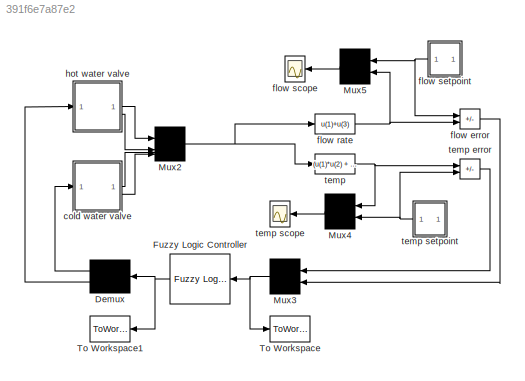
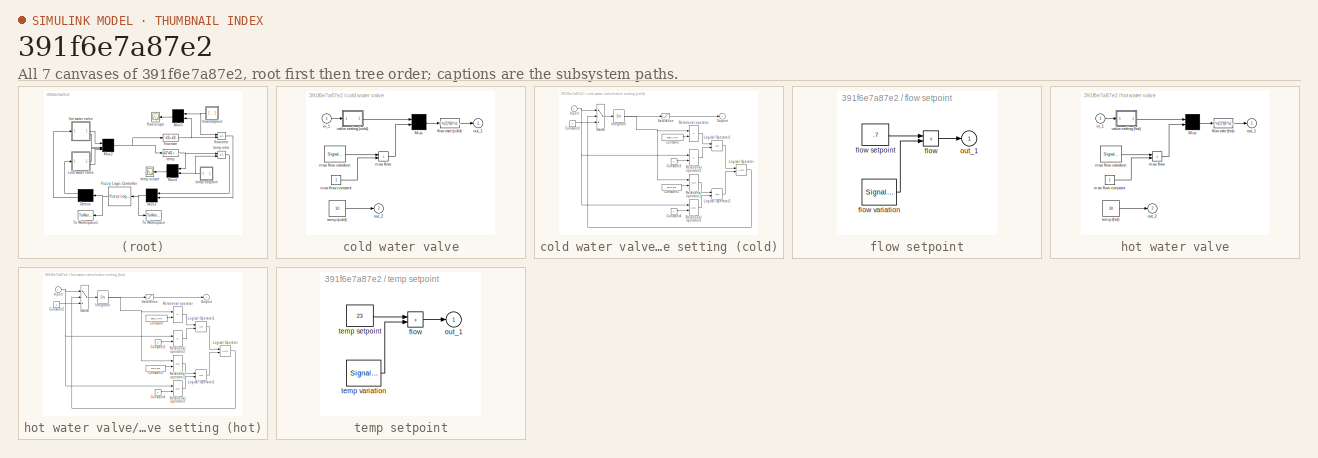
[diagram: thumbnail index - all 7 canvases of the model, root first then tree order]
MODEL slx_391f6e7a87e2
KIND model
CONFIG AbsTol = 1e-3
CONFIG EnableMultiTasking = off
CONFIG FixedStep = auto
CONFIG MaxStep = 0.1
CONFIG MinStep = auto
CONFIG PreLoadFcn = fis = readfis('shower');\nk=1;
CONFIG RelTol = 1e-3
CONFIG SampleTimeConstraint = Unconstrained
CONFIG SolverName = ode45
CONFIG StartTime = 0
CONFIG StopTime = 50
BLOCK [Demux] Demux
  DisplayOption = none
  Outputs = 2
BLOCK [Reference] Fuzzy Logic Controller  REF=fuzblock/Fuzzy Logic   (lib defined in mdl_858b3b3e7478)
Controller
  SourceBlock = fuzblock/Fuzzy Logic \nController
  SourceType = Fuzzy Inference System
BLOCK [Mux] Mux2
BLOCK [Mux] Mux3
  Inputs = 2
BLOCK [Mux] Mux4
  Inputs = 2
BLOCK [Mux] Mux5
  Inputs = 2
BLOCK [ToWorkspace] To Workspace
  VariableName = in
BLOCK [ToWorkspace] To Workspace1
  VariableName = out
BLOCK [SubSystem] cold water valve
  ShowPortLabels = none
BLOCK [Mux] cold water valve/Mux
  Inputs = 2
BLOCK [Fcn] cold water valve/flow rate (cold)
  Expr = k*u(1)*((k*u(1))<=u(2)) + u(2)*((k*u(1))>u(2))
BLOCK [Inport] cold water valve/in_1
BLOCK [Sum] cold water valve/max flow
  IconShape = rectangular
  InputSameDT = on
  OutDataTypeStr = Inherit: Same as first input
  SaturateOnIntegerOverflow = on
BLOCK [Constant] cold water valve/max flow constant
BLOCK [SignalGenerator] cold water valve/max flow variation
  Amplitude = 0.000000
  Frequency = 0.101325
  Units = rad/sec
BLOCK [Outport] cold water valve/out_1
  InitialOutput = 0
  VectorParamsAs1DForOutWhenUnconnected = off
BLOCK [Outport] cold water valve/out_2
  InitialOutput = 0
  Port = 2
  VectorParamsAs1DForOutWhenUnconnected = off
BLOCK [Constant] cold water valve/temp (cold)
  Value = 10
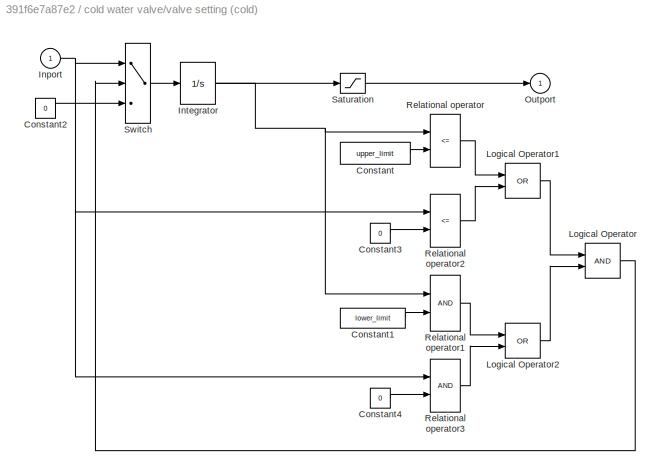
BLOCK [SubSystem] cold water valve/valve setting (cold)
  ShowPortLabels = none
BLOCK [Constant] cold water valve/valve setting (cold)/Constant
  Value = upper_limit
BLOCK [Constant] cold water valve/valve setting (cold)/Constant1
  Value = lower_limit
BLOCK [Constant] cold water valve/valve setting (cold)/Constant2
  Value = 0
BLOCK [Constant] cold water valve/valve setting (cold)/Constant3
  Value = 0
BLOCK [Constant] cold water valve/valve setting (cold)/Constant4
  Value = 0
BLOCK [Inport] cold water valve/valve setting (cold)/Inport
BLOCK [Integrator] cold water valve/valve setting (cold)/Integrator
  InitialCondition = X0
BLOCK [Logic] cold water valve/valve setting (cold)/Logical Operator
BLOCK [Logic] cold water valve/valve setting (cold)/Logical Operator1
  Operator = OR
BLOCK [Logic] cold water valve/valve setting (cold)/Logical Operator2
  Operator = OR
BLOCK [Outport] cold water valve/valve setting (cold)/Outport
  InitialOutput = 0
  VectorParamsAs1DForOutWhenUnconnected = off
BLOCK [RelationalOperator] cold water valve/valve setting (cold)/Relational operator
  Operator = <=
BLOCK [RelationalOperator] cold water valve/valve setting (cold)/Relational operator1
BLOCK [RelationalOperator] cold water valve/valve setting (cold)/Relational operator2
  Operator = <=
BLOCK [RelationalOperator] cold water valve/valve setting (cold)/Relational operator3
BLOCK [Saturate] cold water valve/valve setting (cold)/Saturation
  LowerLimit = lower_limit
  UpperLimit = upper_limit
BLOCK [Switch] cold water valve/valve setting (cold)/Switch
  Threshold = 0.5
BLOCK [Sum] flow error
  IconShape = rectangular
  InputSameDT = on
  Inputs = -+
  OutDataTypeStr = Inherit: Same as first input
  SaturateOnIntegerOverflow = on
BLOCK [Fcn] flow rate
  Expr = u(1)+u(3)
BLOCK [Scope] flow scope
  Floating = off
  NumInputPorts = 1
  ScopeSpecificationString = Simulink.scopes.TimeScopeBlockCfg('CurrentConfiguration', extmgr.ConfigurationSet(extmgr.Configuration('Core','General UI',true),extmgr.Configuration('Core','Source UI',true),extmgr.Configuration('Sources','WiredSimulink',true,'DataLoggingSaveFormat','Array','DataLoggingLimitDataPoints',true,'DataLoggingDecimation','1','DataLoggingDecimateData',true),extmgr.Configuration('Visuals','Time Domain',tr...<+1792ch>
BLOCK [SubSystem] flow setpoint
  ShowPortLabels = none
BLOCK [Sum] flow setpoint/flow
  IconShape = rectangular
  InputSameDT = on
  OutDataTypeStr = Inherit: Same as first input
  SaturateOnIntegerOverflow = on
BLOCK [Constant] flow setpoint/flow setpoint
  Value = .7
BLOCK [SignalGenerator] flow setpoint/flow variation
  Amplitude = 0.200000
  Frequency = 0.300000
  Units = rad/sec
  WaveForm = square
BLOCK [Outport] flow setpoint/out_1
  InitialOutput = 0
  VectorParamsAs1DForOutWhenUnconnected = off
BLOCK [SubSystem] hot water valve
  ShowPortLabels = none
BLOCK [Mux] hot water valve/Mux
  Inputs = 2
BLOCK [Fcn] hot water valve/flow rate (hot)
  Expr = k*u(1)*((k*u(1))<=u(2)) + u(2)*((k*u(1))>u(2))
BLOCK [Inport] hot water valve/in_1
BLOCK [Sum] hot water valve/max flow
  IconShape = rectangular
  InputSameDT = on
  OutDataTypeStr = Inherit: Same as first input
  SaturateOnIntegerOverflow = on
BLOCK [Constant] hot water valve/max flow constant
BLOCK [SignalGenerator] hot water valve/max flow variation
  Amplitude = 0.000000
  Frequency = 0.300000
  Units = rad/sec
BLOCK [Outport] hot water valve/out_1
  InitialOutput = 0
  VectorParamsAs1DForOutWhenUnconnected = off
BLOCK [Outport] hot water valve/out_2
  InitialOutput = 0
  Port = 2
  VectorParamsAs1DForOutWhenUnconnected = off
BLOCK [Constant] hot water valve/temp (hot)
  Value = 30
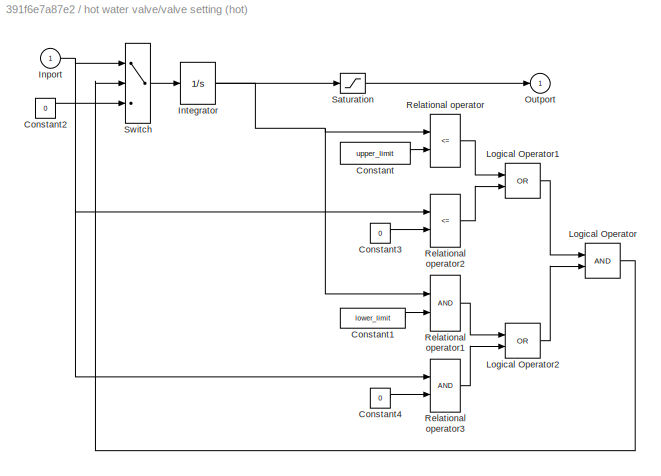
BLOCK [SubSystem] hot water valve/valve setting (hot)
  ShowPortLabels = none
BLOCK [Constant] hot water valve/valve setting (hot)/Constant
  Value = upper_limit
BLOCK [Constant] hot water valve/valve setting (hot)/Constant1
  Value = lower_limit
BLOCK [Constant] hot water valve/valve setting (hot)/Constant2
  Value = 0
BLOCK [Constant] hot water valve/valve setting (hot)/Constant3
  Value = 0
BLOCK [Constant] hot water valve/valve setting (hot)/Constant4
  Value = 0
BLOCK [Inport] hot water valve/valve setting (hot)/Inport
BLOCK [Integrator] hot water valve/valve setting (hot)/Integrator
  InitialCondition = X0
BLOCK [Logic] hot water valve/valve setting (hot)/Logical Operator
BLOCK [Logic] hot water valve/valve setting (hot)/Logical Operator1
  Operator = OR
BLOCK [Logic] hot water valve/valve setting (hot)/Logical Operator2
  Operator = OR
BLOCK [Outport] hot water valve/valve setting (hot)/Outport
  InitialOutput = 0
  VectorParamsAs1DForOutWhenUnconnected = off
BLOCK [RelationalOperator] hot water valve/valve setting (hot)/Relational operator
  Operator = <=
BLOCK [RelationalOperator] hot water valve/valve setting (hot)/Relational operator1
BLOCK [RelationalOperator] hot water valve/valve setting (hot)/Relational operator2
  Operator = <=
BLOCK [RelationalOperator] hot water valve/valve setting (hot)/Relational operator3
BLOCK [Saturate] hot water valve/valve setting (hot)/Saturation
  LowerLimit = lower_limit
  UpperLimit = upper_limit
BLOCK [Switch] hot water valve/valve setting (hot)/Switch
  Threshold = 0.5
BLOCK [Fcn] temp
  Expr = (u(1)*u(2) + u(3)*u(4))/(u(1)+u(3))
BLOCK [Sum] temp error
  IconShape = rectangular
  InputSameDT = on
  Inputs = +-
  OutDataTypeStr = Inherit: Same as first input
  SaturateOnIntegerOverflow = on
BLOCK [Scope] temp scope
  Floating = off
  NumInputPorts = 1
  ScopeSpecificationString = Simulink.scopes.TimeScopeBlockCfg('CurrentConfiguration', extmgr.ConfigurationSet(extmgr.Configuration('Core','General UI',true),extmgr.Configuration('Core','Source UI',true),extmgr.Configuration('Sources','WiredSimulink',true,'DataLoggingSaveFormat','Array','DataLoggingLimitDataPoints',true,'DataLoggingDecimation','1','DataLoggingDecimateData',true),extmgr.Configuration('Visuals','Time Domain',tr...<+1792ch>
BLOCK [SubSystem] temp setpoint
  ShowPortLabels = none
BLOCK [Sum] temp setpoint/flow
  IconShape = rectangular
  InputSameDT = on
  OutDataTypeStr = Inherit: Same as first input
  SaturateOnIntegerOverflow = on
BLOCK [Outport] temp setpoint/out_1
  InitialOutput = 0
  VectorParamsAs1DForOutWhenUnconnected = off
BLOCK [Constant] temp setpoint/temp setpoint
  Value = 23
BLOCK [SignalGenerator] temp setpoint/temp variation
  Amplitude = 4.000000
  Frequency = 0.214320
  Units = rad/sec
  WaveForm = square
LINE Demux:1 -> cold water valve:1
LINE Demux:2 -> hot water valve:1
NET Fuzzy Logic Controller:1 -> Demux:1, To Workspace1:1
NET Mux2:1 -> flow rate:1, temp:1
NET Mux3:1 -> Fuzzy Logic Controller:1, To Workspace:1
LINE Mux4:1 -> temp scope:1
LINE Mux5:1 -> flow scope:1
LINE cold water valve/Mux:1 -> cold water valve/flow rate (cold):1
LINE cold water valve/flow rate (cold):1 -> cold water valve/out_1:1
LINE cold water valve/in_1:1 -> cold water valve/valve setting (cold):1
LINE cold water valve/max flow constant:1 -> cold water valve/max flow:2
LINE cold water valve/max flow variation:1 -> cold water valve/max flow:1
LINE cold water valve/max flow:1 -> cold water valve/Mux:2
LINE cold water valve/temp (cold):1 -> cold water valve/out_2:1
LINE cold water valve/valve setting (cold)/Constant1:1 -> cold water valve/valve setting (cold)/Relational operator1:2
LINE cold water valve/valve setting (cold)/Constant2:1 -> cold water valve/valve setting (cold)/Switch:3
LINE cold water valve/valve setting (cold)/Constant3:1 -> cold water valve/valve setting (cold)/Relational operator2:2
LINE cold water valve/valve setting (cold)/Constant4:1 -> cold water valve/valve setting (cold)/Relational operator3:2
LINE cold water valve/valve setting (cold)/Constant:1 -> cold water valve/valve setting (cold)/Relational operator:2
NET cold water valve/valve setting (cold)/Inport:1 -> cold water valve/valve setting (cold)/Relational operator2:1, cold water valve/valve setting (cold)/Relational operator3:1, cold water valve/valve setting (cold)/Switch:1
NET cold water valve/valve setting (cold)/Integrator:1 -> cold water valve/valve setting (cold)/Relational operator1:1, cold water valve/valve setting (cold)/Relational operator:1, cold water valve/valve setting (cold)/Saturation:1
LINE cold water valve/valve setting (cold)/Logical Operator1:1 -> cold water valve/valve setting (cold)/Logical Operator:1
LINE cold water valve/valve setting (cold)/Logical Operator2:1 -> cold water valve/valve setting (cold)/Logical Operator:2
LINE cold water valve/valve setting (cold)/Logical Operator:1 -> cold water valve/valve setting (cold)/Switch:2
LINE cold water valve/valve setting (cold)/Relational operator1:1 -> cold water valve/valve setting (cold)/Logical Operator2:1
LINE cold water valve/valve setting (cold)/Relational operator2:1 -> cold water valve/valve setting (cold)/Logical Operator1:2
LINE cold water valve/valve setting (cold)/Relational operator3:1 -> cold water valve/valve setting (cold)/Logical Operator2:2
LINE cold water valve/valve setting (cold)/Relational operator:1 -> cold water valve/valve setting (cold)/Logical Operator1:1
LINE cold water valve/valve setting (cold)/Saturation:1 -> cold water valve/valve setting (cold)/Outport:1
LINE cold water valve/valve setting (cold)/Switch:1 -> cold water valve/valve setting (cold)/Integrator:1
LINE cold water valve/valve setting (cold):1 -> cold water valve/Mux:1
LINE cold water valve:1 -> Mux2:3
LINE cold water valve:2 -> Mux2:4
LINE flow error:1 -> Mux3:2
NET flow rate:1 -> Mux5:2, flow error:2
LINE flow setpoint/flow setpoint:1 -> flow setpoint/flow:1
LINE flow setpoint/flow variation:1 -> flow setpoint/flow:2
LINE flow setpoint/flow:1 -> flow setpoint/out_1:1
NET flow setpoint:1 -> Mux5:1, flow error:1
LINE hot water valve/Mux:1 -> hot water valve/flow rate (hot):1
LINE hot water valve/flow rate (hot):1 -> hot water valve/out_1:1
LINE hot water valve/in_1:1 -> hot water valve/valve setting (hot):1
LINE hot water valve/max flow constant:1 -> hot water valve/max flow:2
LINE hot water valve/max flow variation:1 -> hot water valve/max flow:1
LINE hot water valve/max flow:1 -> hot water valve/Mux:2
LINE hot water valve/temp (hot):1 -> hot water valve/out_2:1
LINE hot water valve/valve setting (hot)/Constant1:1 -> hot water valve/valve setting (hot)/Relational operator1:2
LINE hot water valve/valve setting (hot)/Constant2:1 -> hot water valve/valve setting (hot)/Switch:3
LINE hot water valve/valve setting (hot)/Constant3:1 -> hot water valve/valve setting (hot)/Relational operator2:2
LINE hot water valve/valve setting (hot)/Constant4:1 -> hot water valve/valve setting (hot)/Relational operator3:2
LINE hot water valve/valve setting (hot)/Constant:1 -> hot water valve/valve setting (hot)/Relational operator:2
NET hot water valve/valve setting (hot)/Inport:1 -> hot water valve/valve setting (hot)/Relational operator2:1, hot water valve/valve setting (hot)/Relational operator3:1, hot water valve/valve setting (hot)/Switch:1
NET hot water valve/valve setting (hot)/Integrator:1 -> hot water valve/valve setting (hot)/Relational operator1:1, hot water valve/valve setting (hot)/Relational operator:1, hot water valve/valve setting (hot)/Saturation:1
LINE hot water valve/valve setting (hot)/Logical Operator1:1 -> hot water valve/valve setting (hot)/Logical Operator:1
LINE hot water valve/valve setting (hot)/Logical Operator2:1 -> hot water valve/valve setting (hot)/Logical Operator:2
LINE hot water valve/valve setting (hot)/Logical Operator:1 -> hot water valve/valve setting (hot)/Switch:2
LINE hot water valve/valve setting (hot)/Relational operator1:1 -> hot water valve/valve setting (hot)/Logical Operator2:1
LINE hot water valve/valve setting (hot)/Relational operator2:1 -> hot water valve/valve setting (hot)/Logical Operator1:2
LINE hot water valve/valve setting (hot)/Relational operator3:1 -> hot water valve/valve setting (hot)/Logical Operator2:2
LINE hot water valve/valve setting (hot)/Relational operator:1 -> hot water valve/valve setting (hot)/Logical Operator1:1
LINE hot water valve/valve setting (hot)/Saturation:1 -> hot water valve/valve setting (hot)/Outport:1
LINE hot water valve/valve setting (hot)/Switch:1 -> hot water valve/valve setting (hot)/Integrator:1
LINE hot water valve/valve setting (hot):1 -> hot water valve/Mux:1
LINE hot water valve:1 -> Mux2:1
LINE hot water valve:2 -> Mux2:2
LINE temp error:1 -> Mux3:1
LINE temp setpoint/flow:1 -> temp setpoint/out_1:1
LINE temp setpoint/temp setpoint:1 -> temp setpoint/flow:1
LINE temp setpoint/temp variation:1 -> temp setpoint/flow:2
NET temp setpoint:1 -> Mux4:2, temp error:2
NET temp:1 -> Mux4:1, temp error:1
note: NET lines group one-source signal fan-out (src -> all destinations, sorted); 1:1 wires keep LINE
